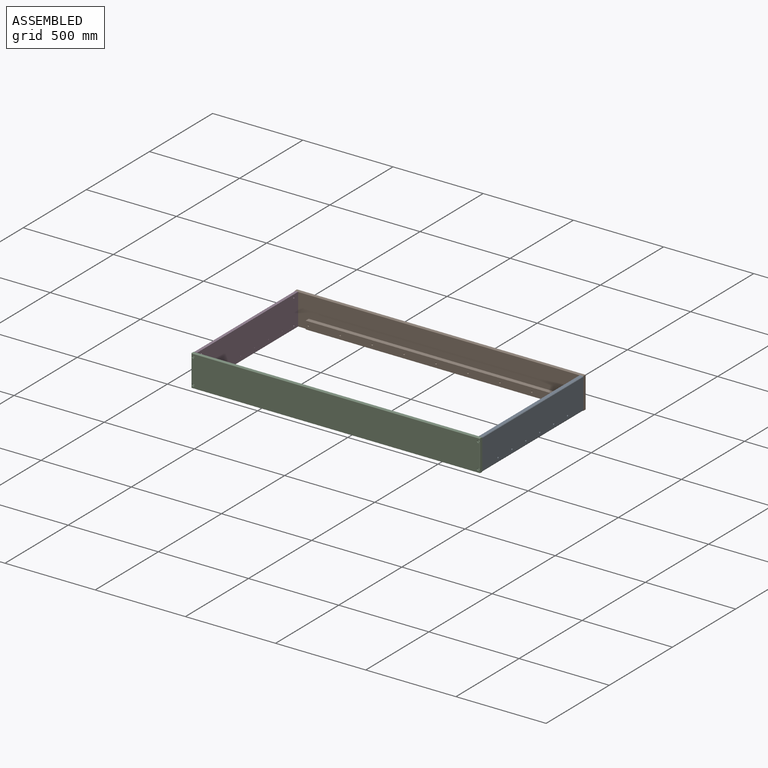
[diagram: assembled view]
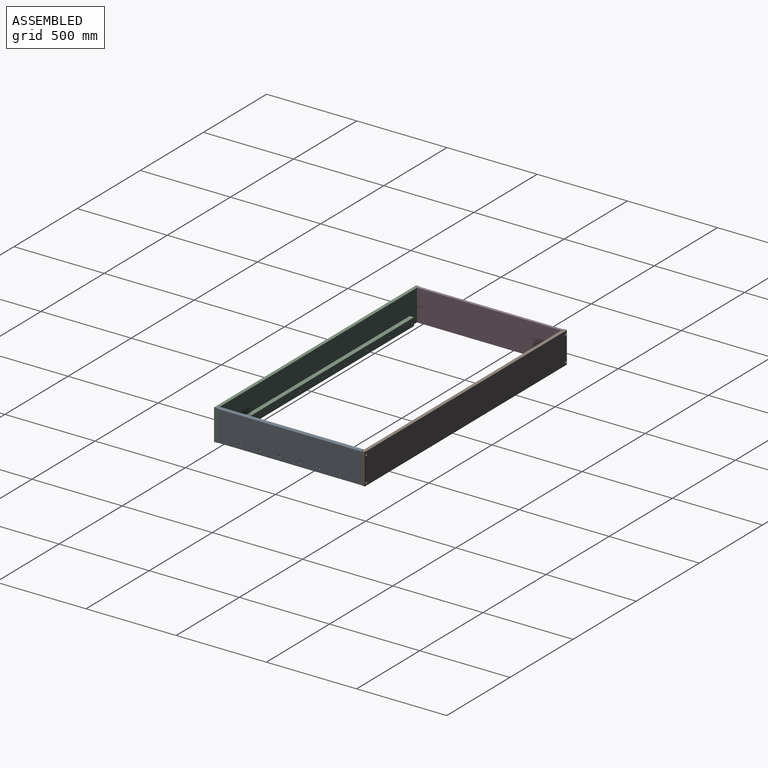
[diagram: assembled view, second angle]
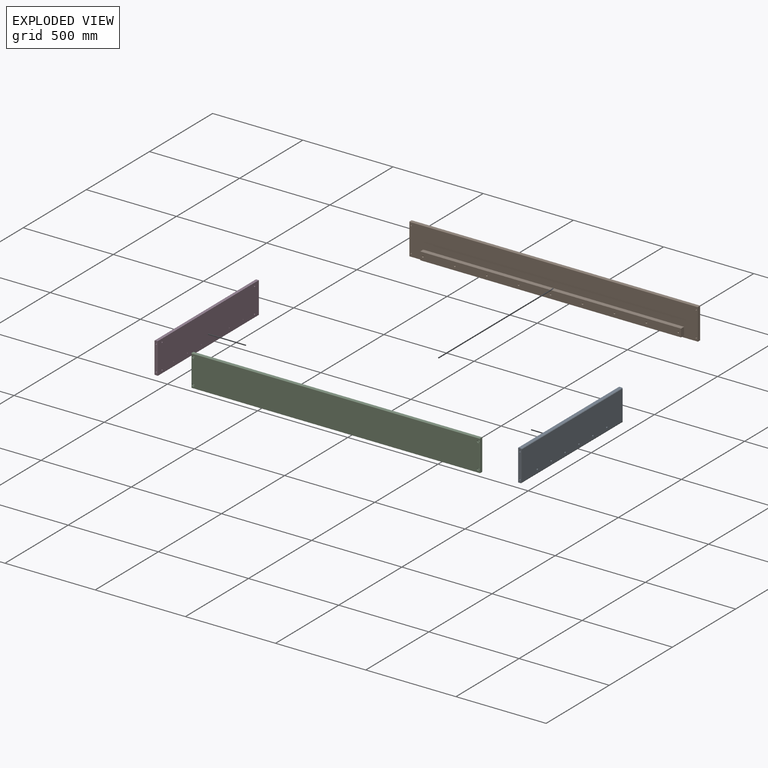
[diagram: exploded view]
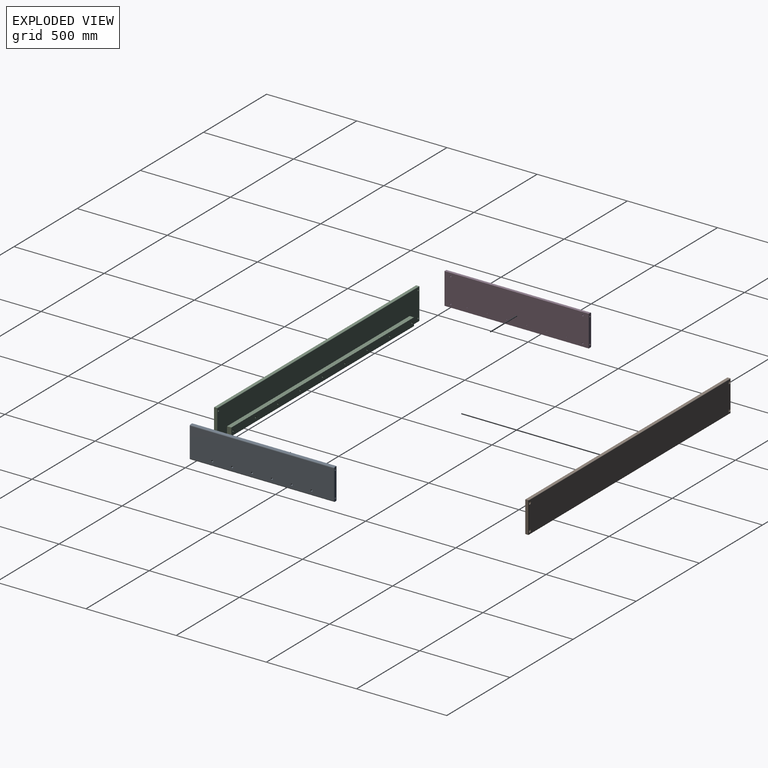
[diagram: exploded view, second angle]
ASSEMBLY  parts=4 mates=3
PART A: 32 faces, bbox 19x800x174 mm
  f0: cylinder r=4mm len=14mm, axis (1,0,0), area 307.6mm2, adj f8,f14,f17
  f1: cylinder r=4mm len=14mm, axis (1,0,0), area 307.6mm2, adj f8,f15,f16
  f2: cylinder r=4mm len=14mm, axis (1,0,0), area 307.7mm2, adj f8,f11,f12
  f3: cylinder r=4mm len=14mm, axis (1,0,0), area 307.7mm2, adj f8,f10,f13
  f4: plane 800x14mm, normal (0,0,-1), area 11200mm2, adj f5,f7,f8,f19
  f5: plane 174x19mm, normal (0,1,0), area 3218.3mm2, adj f4,f6,f8,f9,f12,f13,f18,f19
  f6: plane 800x14mm, normal (0,0,1), area 11200mm2, adj f5,f7,f8,f18
  f7: plane 174x19mm, normal (0,-1,0), area 3218.3mm2, adj f4,f6,f8,f9,f14,f15,f18,f19
  f8: plane 800x174mm, normal (-1,0,0), area 138923.5mm2, adj f0,f1,f2,f3,f4,f5,f6,f7
  f9: plane 800x164mm, normal (1,0,0), area 130728.8mm2, adj f5,f7,f18,f19,f26,f27,f28,f29
  f10: plane 8x8mm, normal (-1,0,0), area 50.3mm2, adj f3
  f11: plane 8x8mm, normal (-1,0,0), area 50.3mm2, adj f2
  f12: cylinder r=3.5mm len=32.06mm, axis (0,1,0), area 680.4mm2, adj f2,f5
  f13: cylinder r=3.5mm len=32.06mm, axis (0,1,0), area 680.4mm2, adj f3,f5
  f14: cylinder r=3.5mm len=32.06mm, axis (0,-1,0), area 680.4mm2, adj f0,f7
  f15: cylinder r=3.5mm len=32.06mm, axis (0,-1,0), area 680.4mm2, adj f1,f7
  f16: plane 8x8mm, normal (-1,0,0), area 50.3mm2, adj f1
  f17: plane 8x8mm, normal (-1,0,0), area 50.3mm2, adj f0
  f18: cylinder r=5mm len=800mm, axis (0,-1,0), area 6283.2mm2, adj f5,f6,f7,f9
  f19: cylinder r=5mm len=800mm, axis (0,1,0), area 6283.2mm2, adj f4,f5,f7,f9
  f20: cylinder r=2mm len=16mm, axis (1,0,0), area 201.1mm2, adj f8,f31
  f21: cylinder r=2mm len=16mm, axis (1,0,0), area 201.1mm2, adj f8,f30
  f22: cylinder r=2mm len=16mm, axis (1,0,0), area 201.1mm2, adj f8,f29
  f23: cylinder r=2mm len=16mm, axis (1,0,0), area 201.1mm2, adj f8,f28
  f24: cylinder r=2mm len=16mm, axis (1,0,0), area 201.1mm2, adj f8,f27
  f25: cylinder r=2mm len=16mm, axis (1,0,0), area 201.1mm2, adj f8,f26
  f26: cone r=2mm half-angle=45deg, axis (1,0,0), area 93.3mm2, adj f9,f25
  f27: cone r=2mm half-angle=45deg, axis (1,0,0), area 93.3mm2, adj f9,f24
  f28: cone r=2mm half-angle=45deg, axis (1,0,0), area 93.3mm2, adj f9,f23
  f29: cone r=2mm half-angle=45deg, axis (1,0,0), area 93.3mm2, adj f9,f22
  f30: cone r=2mm half-angle=45deg, axis (1,0,0), area 93.3mm2, adj f9,f21
  f31: cone r=2mm half-angle=45deg, axis (1,0,0), area 93.3mm2, adj f9,f20
PART B: 55 faces, bbox 1600x43x174 mm
  f0: plane 1600x172.07mm, normal (0,1,0), area 211532.5mm2, adj f1,f2,f8,f10,f15,f17,f19,f20
  f1: plane 1600x17.07mm, normal (0,0,-1), area 27309.8mm2, adj f0,f2,f8,f11
  f2: plane 174x17.07mm, normal (1,0,0), area 2969.1mm2, adj f0,f1,f3,f10,f12
  f3: plane 1600x15.14mm, normal (0,0,1), area 24220.2mm2, adj f2,f8,f10,f14
  f4: cylinder r=7.5mm len=15mm, axis (0,1,0), area 235.6mm2, adj f9,f43
  f5: cylinder r=7.5mm len=15mm, axis (0,1,0), area 235.6mm2, adj f9,f18
  f6: cylinder r=7.5mm len=15mm, axis (0,1,0), area 235.6mm2, adj f9,f54
  f7: cylinder r=7.5mm len=15mm, axis (0,1,0), area 235.6mm2, adj f9,f16
  f8: plane 174x17.07mm, normal (-1,0,0), area 2969.1mm2, adj f0,f1,f3,f10,f13
  f9: plane 1596.14x170.14mm, normal (0,-1,0), area 270855.6mm2, adj f4,f5,f6,f7,f11,f12,f13,f14
  f10: cylinder r=1.93mm len=1600mm, axis (-1,0,0), area 4853.1mm2, adj f0,f2,f3,f8
  f11: cylinder r=1.93mm len=1600mm, axis (-1,0,0), area 4849.8mm2, adj f1,f9,f12,f13
  f12: cylinder r=1.93mm len=174mm, axis (0,0,-1), area 523.6mm2, adj f2,f9,f11,f14
  f13: cylinder r=1.93mm len=174mm, axis (0,0,1), area 523.6mm2, adj f8,f9,f11,f14
  f14: cylinder r=1.93mm len=1600mm, axis (1,0,0), area 4849.8mm2, adj f3,f9,f12,f13
  f15: cylinder r=3.5mm len=14mm, axis (0,1,0), area 307.9mm2, adj f0,f16
  f16: plane 15x15mm, normal (0,-1,0), area 138.2mm2, adj f7,f15
  f17: cylinder r=3.5mm len=14mm, axis (0,1,0), area 307.9mm2, adj f0,f18
  f18: plane 15x15mm, normal (0,-1,0), area 138.2mm2, adj f5,f17
  f19: plane 44x24mm, normal (-1,0,0), area 1056mm2, adj f0,f20,f30,f32
  f20: plane 1446x24mm, normal (0,0,-1), area 34704mm2, adj f0,f19,f21,f32
  f21: plane 44x24mm, normal (1,0,0), area 1056mm2, adj f0,f20,f30,f32
  f22: cylinder r=2mm len=21mm, axis (0,-1,0), area 263.9mm2, adj f41,f46
  f23: cylinder r=2mm len=21mm, axis (0,-1,0), area 263.9mm2, adj f40,f47
  f24: cylinder r=2mm len=21mm, axis (0,-1,0), area 263.9mm2, adj f39,f48
  f25: cylinder r=2mm len=21mm, axis (0,-1,0), area 263.9mm2, adj f38,f49
  f26: cylinder r=2mm len=21mm, axis (0,-1,0), area 263.9mm2, adj f37,f50
  f27: cylinder r=2mm len=21mm, axis (0,-1,0), area 263.9mm2, adj f36,f51
  f28: cylinder r=2mm len=21mm, axis (0,-1,0), area 263.9mm2, adj f35,f52
  f29: cylinder r=2mm len=21mm, axis (0,-1,0), area 263.9mm2, adj f34,f44
  f30: plane 1446x24mm, normal (0,0,1), area 34704mm2, adj f0,f19,f21,f32
  f31: cylinder r=2mm len=21mm, axis (0,-1,0), area 263.9mm2, adj f33,f45
  f32: plane 1446x44mm, normal (0,1,0), area 62917.1mm2, adj f19,f20,f21,f30,f44,f45,f46,f47
  f33: plane 4x4mm, normal (0,1,0), area 12.6mm2, adj f31
  f34: plane 4x4mm, normal (0,1,0), area 12.6mm2, adj f29
  f35: plane 4x4mm, normal (0,1,0), area 12.6mm2, adj f28
  f36: plane 4x4mm, normal (0,1,0), area 12.6mm2, adj f27
  f37: plane 4x4mm, normal (0,1,0), area 12.6mm2, adj f26
  f38: plane 4x4mm, normal (0,1,0), area 12.6mm2, adj f25
  f39: plane 4x4mm, normal (0,1,0), area 12.6mm2, adj f24
  f40: plane 4x4mm, normal (0,1,0), area 12.6mm2, adj f23
  f41: plane 4x4mm, normal (0,1,0), area 12.6mm2, adj f22
  f42: cylinder r=3.5mm len=14mm, axis (0,1,0), area 307.9mm2, adj f0,f43
  f43: plane 15x15mm, normal (0,-1,0), area 138.2mm2, adj f4,f42
  f44: cone r=5mm half-angle=45deg, axis (0,1,0), area 93.3mm2, adj f29,f32
  f45: cone r=5mm half-angle=45deg, axis (0,1,0), area 93.3mm2, adj f31,f32
  f46: cone r=5mm half-angle=45deg, axis (0,1,0), area 93.3mm2, adj f22,f32
  f47: cone r=5mm half-angle=45deg, axis (0,1,0), area 93.3mm2, adj f23,f32
  f48: cone r=5mm half-angle=45deg, axis (0,1,0), area 93.3mm2, adj f24,f32
  f49: cone r=5mm half-angle=45deg, axis (0,1,0), area 93.3mm2, adj f25,f32
  f50: cone r=5mm half-angle=45deg, axis (0,1,0), area 93.3mm2, adj f26,f32
  f51: cone r=5mm half-angle=45deg, axis (0,1,0), area 93.3mm2, adj f27,f32
  f52: cone r=5mm half-angle=45deg, axis (0,1,0), area 93.3mm2, adj f28,f32
  f53: cylinder r=3.5mm len=14mm, axis (0,1,0), area 307.9mm2, adj f0,f54
  f54: plane 15x15mm, normal (0,-1,0), area 138.2mm2, adj f6,f53
PART C: same geometry as B
PART D: same geometry as A
PLACE A t=(746.02,399.81,12.17)mm
PLACE B rot(axis=(0,0,1),180deg) t=(-53.98,799.81,12.17)mm
PLACE C t=(-53.98,-0.19,12.17)mm fixed
PLACE D rot(axis=(0,0,1),180deg) t=(-853.98,399.81,12.17)mm
MATE fastened A.f13 <-> C.f6  axis (0,-1,0) through (736.52,-0.19,82.17)mm
MATE fastened D.f13 <-> B.f6  axis (0,1,0) through (-844.48,799.81,82.17)mm
MATE fastened B.f4 <-> A.f13  axis (0,-1,0) through (736.52,799.81,82.17)mm
